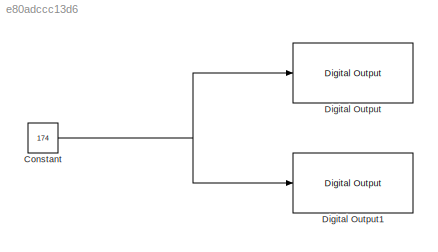
MODEL slx_e80adccc13d6
KIND model
BLOCK [Constant] Constant
  LockScale = on
  OutDataTypeStr = uint8
  SampleTime = 0.05
  Value = 174
BLOCK [Reference] Digital Output  REF=arduinolib/Digital Output
  Ports = [1]
  SourceBlock = arduinolib/Digital Output
  SourceType = Arduino Digital Output
  pinNumber = 11
BLOCK [Reference] Digital Output1  REF=arduinolib/Digital Output
  Ports = [1]
  SourceBlock = arduinolib/Digital Output
  SourceType = Arduino Digital Output
  pinNumber = 12
NET Constant:1 -> Digital Output1:1, Digital Output:1
note: NET lines group one-source signal fan-out (src -> all destinations, sorted); 1:1 wires keep LINE
